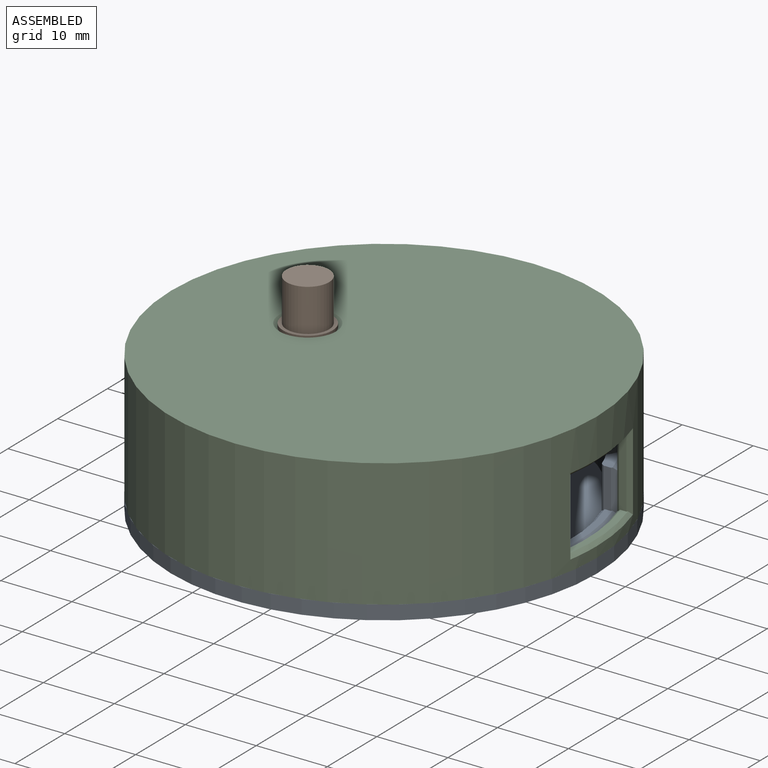
[diagram: assembled view]
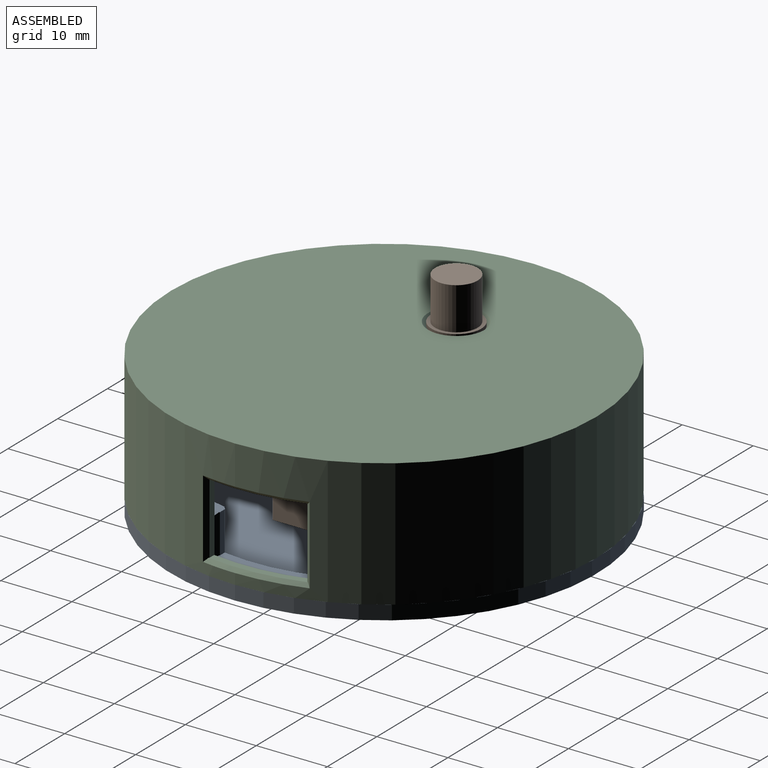
[diagram: assembled view, second angle]
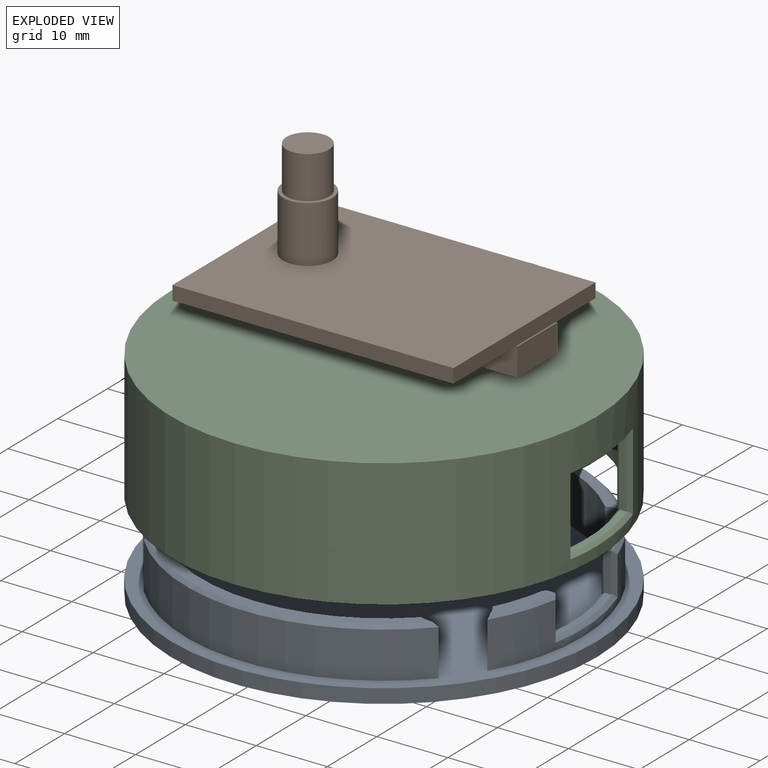
[diagram: exploded view]
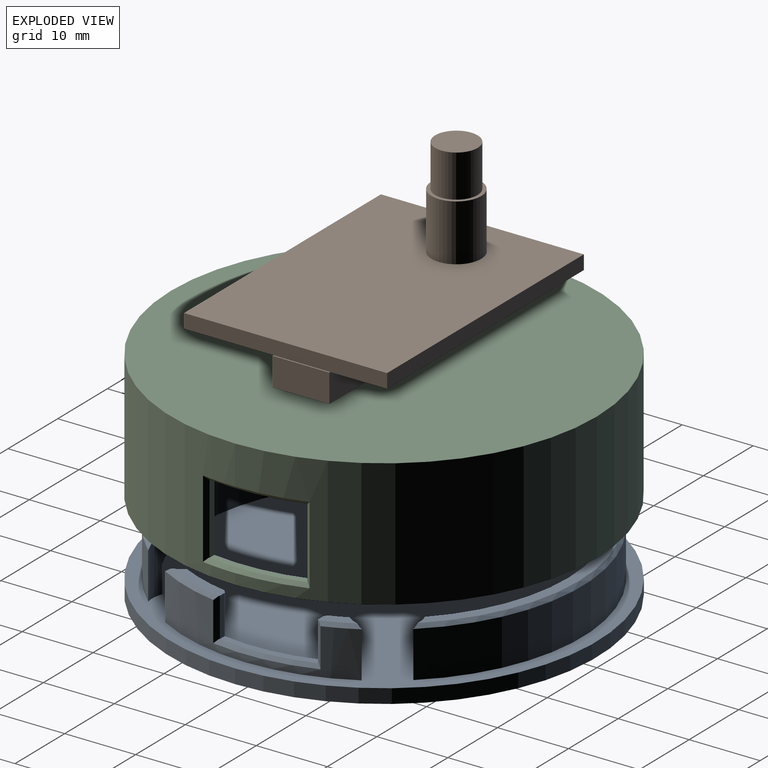
[diagram: exploded view, second angle]
ASSEMBLY  parts=3 mates=2
PART A: 38 faces, bbox 60x60x9 mm
  f0: cylinder r=27.95mm len=41.56mm, axis (0,0,1), area 304.6mm2, adj f13,f19,f30,f36
  f1: cylinder r=27.95mm len=27.7mm, axis (0,0,1), area 188.4mm2, adj f14,f19,f33,f37
  f2: cylinder r=27.95mm len=41.56mm, axis (0,0,1), area 304.6mm2, adj f15,f19,f32,f34
  f3: cylinder r=27.95mm len=27.7mm, axis (0,0,1), area 108.8mm2, adj f16,f19,f23,f24,f25,f26,f31,f35
  f4: plane 40.01x8.95mm, normal (0,0,-1), area 63.6mm2, adj f9,f13,f30,f36
  f5: plane 26.17x4.17mm, normal (0,0,-1), area 38mm2, adj f10,f14,f33,f37
  f6: plane 8.88x3.83mm, normal (0,0,-1), area 12.6mm2, adj f12,f16,f20,f25,f27,f35
  f7: plane 40.01x8.95mm, normal (0,0,-1), area 63.6mm2, adj f11,f15,f32,f34
  f8: plane 4.28x2.66mm, normal (0,0,-1), area 5.5mm2, adj f12,f22,f24,f26,f29,f31
  f9: cylinder r=25.95mm len=36.39mm, axis (0,0,1), area 282.3mm2, adj f4,f19,f30,f36
  f10: cylinder r=25.95mm len=22.91mm, axis (0,0,1), area 166.1mm2, adj f5,f19,f33,f37
  f11: cylinder r=25.95mm len=36.39mm, axis (0,0,1), area 282.3mm2, adj f7,f19,f32,f34
  f12: cylinder r=25.95mm len=22.91mm, axis (0,0,1), area 82.3mm2, adj f6,f8,f19,f27,f28,f29,f31,f35
  f13: cone r=27.45mm half-angle=45deg, axis (0,0,1), area 32.4mm2, adj f0,f4,f30,f36
  f14: cone r=27.45mm half-angle=45deg, axis (0,0,1), area 19.9mm2, adj f1,f5,f33,f37
  f15: cone r=27.45mm half-angle=45deg, axis (0,0,1), area 32.4mm2, adj f2,f7,f32,f34
  f16: cone r=27.45mm half-angle=45deg, axis (0,0,1), area 6.7mm2, adj f3,f6,f25,f35
  f17: cylinder r=30mm len=60mm, axis (0,0,-1), area 377mm2, adj f18,f19
  f18: plane 60x60mm, normal (0,0,1), area 2827.4mm2, adj f17
  f19: plane 60x60mm, normal (0,0,-1), area 2550.2mm2, adj f0,f1,f2,f3,f9,f10,f11,f12
  f20: plane 5.58x1.02mm, normal (0,-1,0), area 5.6mm2, adj f6,f21,f25,f27,f28
  f21: plane 13.25x2.51mm, normal (0,0,-1), area 13.2mm2, adj f20,f22,f23,f24,f25,f28
  f22: plane 5.67x1.07mm, normal (0,1,0), area 5.9mm2, adj f8,f21,f24,f28,f29
  f23: cone r=27.45mm half-angle=45deg, axis (0,0,1), area 9.9mm2, adj f3,f21,f24,f25
  f24: plane 6x0.67mm, normal (0.82,0.57,0), area 4.5mm2, adj f3,f8,f21,f22,f23,f26
  f25: plane 6x0.59mm, normal (0.77,-0.64,0), area 4.2mm2, adj f3,f6,f16,f20,f21,f23
  f26: cone r=27.45mm half-angle=45deg, axis (0,0,1), area 3.3mm2, adj f3,f8,f24,f31
  f27: plane 6.01x0.5mm, normal (-0.64,-0.77,0), area 3.7mm2, adj f6,f12,f20,f28
  f28: cone r=25.95mm half-angle=45deg, axis (0,0,-1), area 9.5mm2, adj f12,f20,f21,f22,f27,f29
  f29: plane 6x0.47mm, normal (-0.57,0.82,0), area 3.3mm2, adj f8,f12,f22,f28
  f30: cylinder r=4.5mm len=7mm, axis (0,0,1), area 18.2mm2, adj f0,f4,f9,f13,f19
  f31: cylinder r=4.5mm len=7mm, axis (0,0,1), area 18.2mm2, adj f3,f8,f12,f19,f26
  f32: cylinder r=4.5mm len=7mm, axis (0,0,1), area 18.2mm2, adj f2,f7,f11,f15,f19
  f33: cylinder r=4.5mm len=7mm, axis (0,0,1), area 18.2mm2, adj f1,f5,f10,f14,f19
  f34: cylinder r=4.5mm len=7mm, axis (0,0,1), area 18.2mm2, adj f2,f7,f11,f15,f19
  f35: cylinder r=4.5mm len=7mm, axis (0,0,1), area 18.2mm2, adj f3,f6,f12,f16,f19
  f36: cylinder r=4.5mm len=7mm, axis (0,0,1), area 18.2mm2, adj f0,f4,f9,f13,f19
  f37: cylinder r=4.5mm len=7mm, axis (0,0,1), area 18.2mm2, adj f1,f5,f10,f14,f19
PART B: 16 faces, bbox 39.8x28.6x20 mm
  f0: plane 39.6x28.6mm, normal (0,0,-1), area 974.2mm2, adj f1,f2,f3,f4,f7,f8,f11
  f1: plane 39.6x2mm, normal (0,1,0), area 79.2mm2, adj f0,f2,f4,f5
  f2: plane 28.6x2mm, normal (-1,0,0), area 57.2mm2, adj f0,f1,f3,f5,f6
  f3: plane 39.6x2mm, normal (0,-1,0), area 79.2mm2, adj f0,f2,f4,f5
  f4: plane 28.6x2mm, normal (1,0,0), area 57.2mm2, adj f0,f1,f3,f5
  f5: plane 39.6x28.6mm, normal (0,0,1), area 1094.1mm2, adj f1,f2,f3,f4,f12
  f6: plane 8x0.2mm, normal (0,0,1), area 1.6mm2, adj f2,f7,f8,f10
  f7: plane 20x4mm, normal (0,1,0), area 80mm2, adj f0,f6,f9,f10,f11
  f8: plane 20x4mm, normal (0,-1,0), area 80mm2, adj f0,f6,f9,f10,f11
  f9: plane 20x8mm, normal (0,0,-1), area 160mm2, adj f7,f8,f10,f11
  f10: plane 8x4mm, normal (-1,0,0), area 32mm2, adj f6,f7,f8,f9
  f11: plane 8x4mm, normal (1,0,0), area 32mm2, adj f0,f7,f8,f9
  f12: cylinder r=3.5mm len=8mm, axis (0,0,-1), area 175.9mm2, adj f5,f13
  f13: plane 7x7mm, normal (0,0,1), area 10.2mm2, adj f12,f14
  f14: cylinder r=3mm len=6mm, axis (0,0,-1), area 113.1mm2, adj f13,f15
  f15: plane 6x6mm, normal (0,0,1), area 28.3mm2, adj f14
PART C: 52 faces, bbox 60x60x18 mm
  f0: cylinder r=28mm len=56mm, axis (0,0,1), area 2547.3mm2, adj f2,f4,f5,f6,f7,f8,f9,f10
  f1: cylinder r=30mm len=60mm, axis (0,0,1), area 3209.8mm2, adj f2,f3,f38,f39,f40,f41,f43,f44
  f2: plane 60x60mm, normal (0,0,-1), area 364.4mm2, adj f0,f1
  f3: plane 60x60mm, normal (0,0,1), area 2777.2mm2, adj f1,f42
  f4: plane 56x56mm, normal (0,0,-1), area 1952.7mm2, adj f0,f26,f27,f28,f29,f51
  f5: plane 7.5x7.5mm, normal (0,0,-1), area 40.8mm2, adj f0,f6,f20
  f6: cylinder r=3.75mm len=7.5mm, axis (0,0,1), area 63.3mm2, adj f0,f5,f29
  f7: plane 7.5x7.5mm, normal (0,0,-1), area 40.8mm2, adj f0,f8,f18
  f8: cylinder r=3.75mm len=7.5mm, axis (0,0,1), area 63.3mm2, adj f0,f7,f28
  f9: plane 7.5x7.5mm, normal (0,0,-1), area 40.8mm2, adj f0,f10,f16
  f10: cylinder r=3.75mm len=7.5mm, axis (0,0,1), area 63.3mm2, adj f0,f9,f27
  f11: plane 7.5x7.5mm, normal (0,0,-1), area 40.8mm2, adj f0,f12,f14
  f12: cylinder r=3.75mm len=7.5mm, axis (0,0,1), area 63.3mm2, adj f0,f11,f26
  f13: cone r=0mm half-angle=59deg, axis (0,0,-1), area 3.7mm2, adj f14
  f14: cylinder r=1mm len=7mm, axis (0,0,-1), area 44mm2, adj f11,f13
  f15: cone r=0mm half-angle=59deg, axis (0,0,-1), area 3.7mm2, adj f16
  f16: cylinder r=1mm len=7mm, axis (0,0,-1), area 44mm2, adj f9,f15
  f17: cone r=0mm half-angle=59deg, axis (0,0,-1), area 3.7mm2, adj f18
  f18: cylinder r=1mm len=7mm, axis (0,0,-1), area 44mm2, adj f7,f17
  f19: cone r=0mm half-angle=59deg, axis (0,0,-1), area 3.7mm2, adj f20
  f20: cylinder r=1mm len=7mm, axis (0,0,-1), area 44mm2, adj f5,f19
  f21: plane 13.23x2.39mm, normal (0,0,-1), area 13.2mm2, adj f22,f24,f43,f45,f46,f49
  f22: plane 10.16x1.01mm, normal (0,1,0), area 10.1mm2, adj f21,f23,f43,f48,f49,f50
  f23: plane 13.23x2.39mm, normal (0,0,1), area 13.2mm2, adj f22,f24,f43,f44,f46,f48
  f24: plane 10.32x1.06mm, normal (0,-1,0), area 10.6mm2, adj f21,f23,f46,f47,f48,f49
  f25: cylinder r=3.5mm len=7mm, axis (0,0,1), area 22mm2, adj f42,f51
  f26: torus R=6.75mm, axis (0,0,1), area 107.9mm2, adj f0,f4,f12
  f27: torus R=6.75mm, axis (0,0,1), area 107.9mm2, adj f0,f4,f10
  f28: torus R=6.75mm, axis (0,0,1), area 107.9mm2, adj f0,f4,f8
  f29: torus R=6.75mm, axis (0,0,1), area 107.9mm2, adj f0,f4,f6
  f30: plane 3.1x1.01mm, normal (0,-1,0), area 3mm2, adj f31,f33,f34,f36,f37,f40
  f31: plane 5.09x1.11mm, normal (0,0,-1), area 5mm2, adj f30,f32,f37,f38,f39,f40
  f32: plane 3.1x1.01mm, normal (0,1,0), area 3mm2, adj f31,f33,f34,f35,f37,f39
  f33: plane 5.09x1.11mm, normal (0,0,1), area 5mm2, adj f30,f32,f34,f39,f40,f41
  f34: cone r=28.5mm half-angle=45deg, axis (0,0,1), area 3.8mm2, adj f0,f30,f32,f33,f35,f36
  f35: plane 4.01x0.5mm, normal (0.67,0.74,0), area 2.4mm2, adj f0,f32,f34,f37
  f36: plane 4.01x0.5mm, normal (0.67,-0.74,0), area 2.4mm2, adj f0,f30,f34,f37
  f37: cone r=28mm half-angle=45deg, axis (0,0,-1), area 3.8mm2, adj f0,f30,f31,f32,f35,f36
  f38: cone r=29.5mm half-angle=45deg, axis (0,0,1), area 4mm2, adj f1,f31,f39,f40
  f39: plane 4x0.56mm, normal (-0.74,0.67,0), area 2.6mm2, adj f1,f31,f32,f33,f38,f41
  f40: plane 4x0.56mm, normal (-0.74,-0.67,0), area 2.6mm2, adj f1,f30,f31,f33,f38,f41
  f41: cone r=30mm half-angle=45deg, axis (0,0,-1), area 4mm2, adj f1,f33,f39,f40
  f42: cone r=3.5mm half-angle=45deg, axis (0,0,1), area 16.7mm2, adj f3,f25
  f43: plane 11x0.58mm, normal (0.76,0.65,0), area 7.9mm2, adj f1,f21,f22,f23,f44,f45
  f44: cone r=30mm half-angle=45deg, axis (0,0,-1), area 9.8mm2, adj f1,f23,f43,f46
  f45: cone r=29.5mm half-angle=45deg, axis (0,0,1), area 9.8mm2, adj f1,f21,f43,f46
  f46: plane 11x0.66mm, normal (0.81,-0.59,0), area 8.4mm2, adj f1,f21,f23,f24,f44,f45
  f47: plane 11x0.48mm, normal (-0.58,-0.81,0), area 6.2mm2, adj f0,f24,f48,f49
  f48: cone r=28.5mm half-angle=45deg, axis (0,0,1), area 9.5mm2, adj f0,f22,f23,f24,f47,f50
  f49: cone r=28mm half-angle=45deg, axis (0,0,-1), area 9.5mm2, adj f0,f21,f22,f24,f47,f50
  f50: plane 11x0.5mm, normal (-0.65,0.76,0), area 6.8mm2, adj f0,f22,f48,f49
  f51: cone r=4mm half-angle=45deg, axis (0,0,-1), area 16.7mm2, adj f4,f25
PLACE A rot(axis=(1,0,0),180deg) t=(0,0,-18)mm
PLACE B rot(axis=(0,0,1),180deg) t=(0,0,-10)mm
PLACE C at identity fixed
MATE fastened B.f5 <-> C.f12  axis (0,0,1) through (19.8,-14.3,-8)mm
MATE fastened A.f0 <-> C.f0  axis (0,0,1) through (0,0,-18)mm
